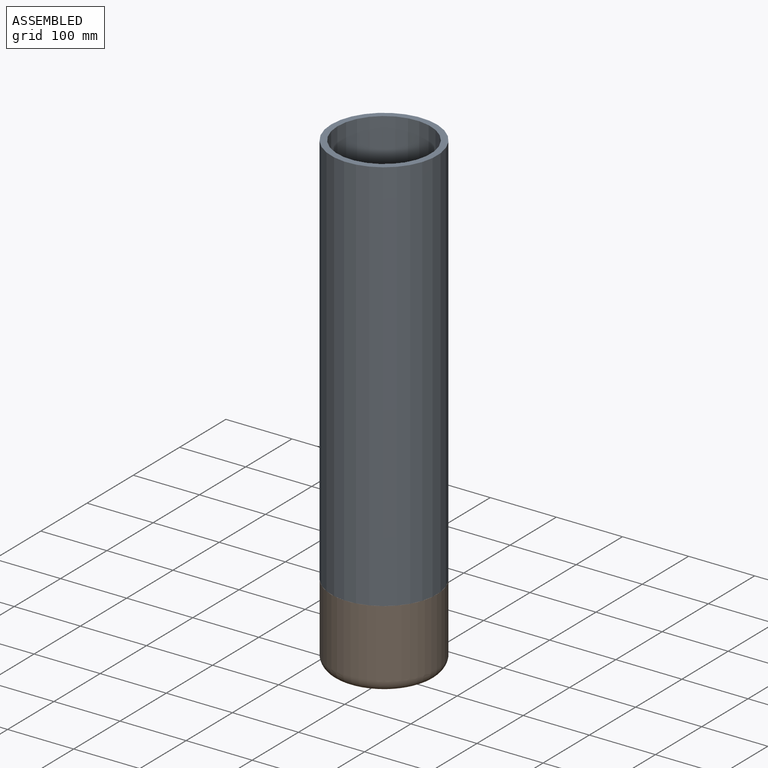
[diagram: assembled view]
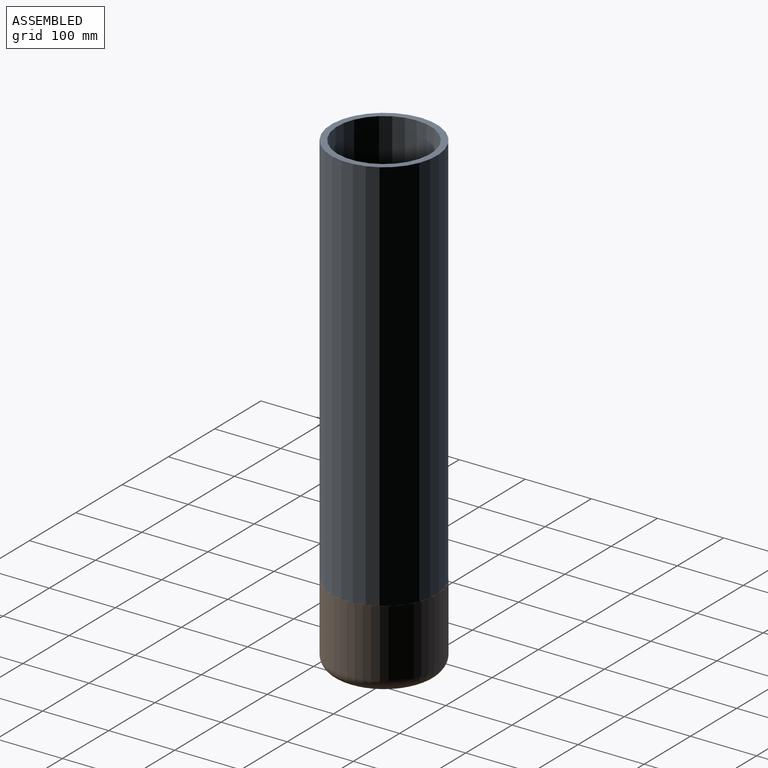
[diagram: assembled view, second angle]
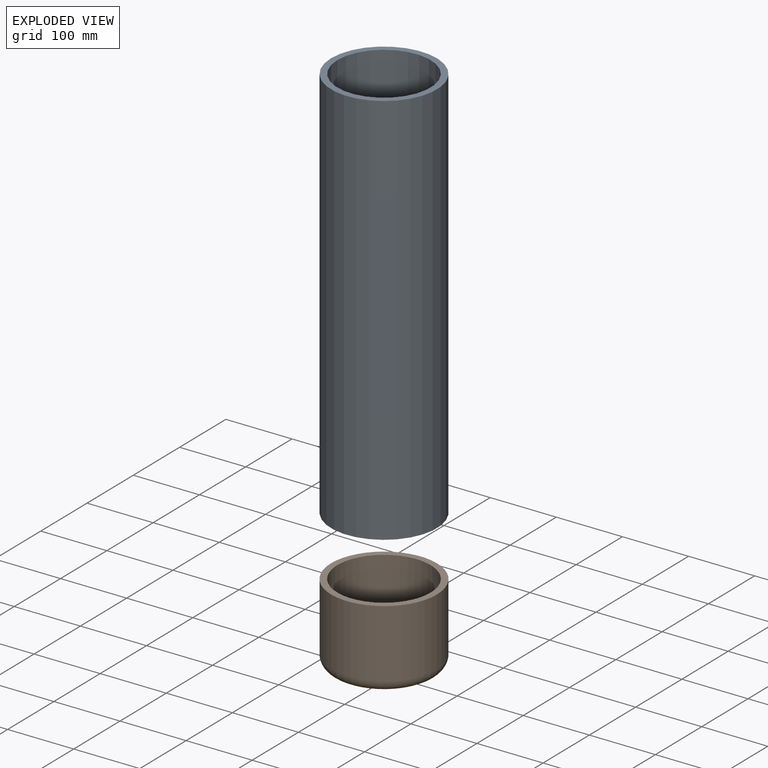
[diagram: exploded view]
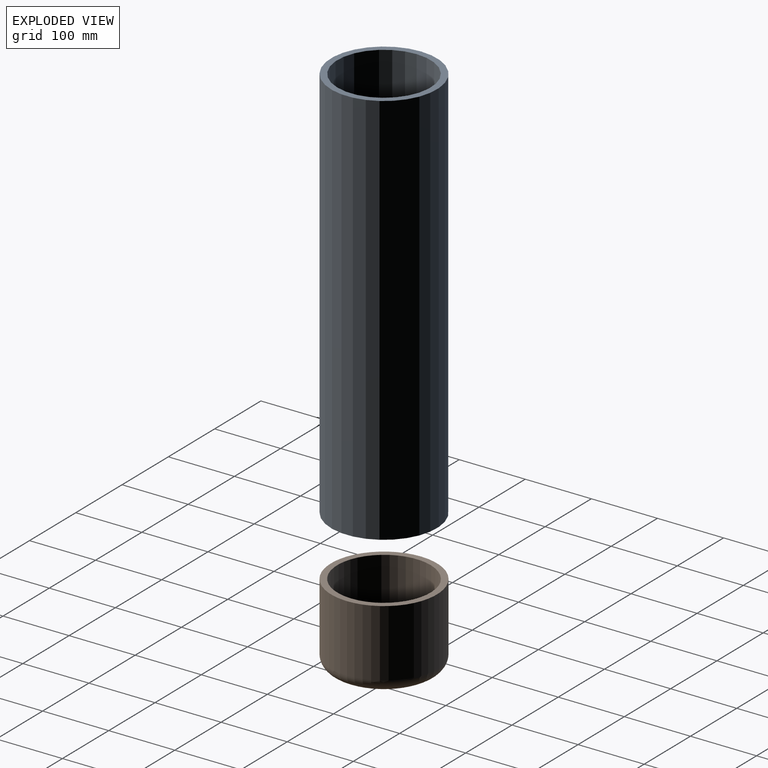
[diagram: exploded view, second angle]
ASSEMBLY  parts=2 mates=2
PART A: 4 faces, bbox 160x160x600 mm
  f0: plane 160x160mm, normal (0,0,-1), area 4491.7mm2, adj f1,f3
  f1: cylinder r=80mm len=600mm, axis (0,0,-1), area 301592.9mm2, adj f0,f2
  f2: plane 160x160mm, normal (0,0,1), area 4491.7mm2, adj f1,f3
  f3: cylinder r=70.5mm len=600mm, axis (0,0,-1), area 265778.7mm2, adj f0,f2
PART B: 57 faces, bbox 173.2x120x173.2 mm
  f0: cylinder r=80mm len=160mm, axis (0,-1,0), area 51270.8mm2, adj f1,f56
  f1: torus R=62mm, axis (0,1,0), area 13050.2mm2, adj f0,f54
  f2: torus R=52.5mm, axis (0,1,0), area 11362.5mm2, adj f3,f55
  f3: cylinder r=70.5mm len=141mm, axis (0,-1,0), area 40974.2mm2, adj f2,f56
  f4: plane 5.36x0.1mm, normal (0,0,1), area 0.5mm2, adj f5,f13,f14,f54
  f5: plane 6.41x0.1mm, normal (-1,0,0), area 0.6mm2, adj f4,f6,f14,f54
  f6: plane 3.22x0.1mm, normal (0,0,1), area 0.3mm2, adj f5,f7,f14,f54
  f7: plane 15.27x0.1mm, normal (1,0,0), area 1.5mm2, adj f6,f8,f14,f54
  f8: plane 8.58x0.1mm, normal (0,0,-1), area 0.9mm2, adj f7,f9,f14,f54
  f9: plane 2.9x0.1mm, normal (-1,0,0), area 0.3mm2, adj f8,f10,f14,f54
  f10: plane 5.36x0.1mm, normal (0,0,1), area 0.5mm2, adj f9,f11,f14,f54
  f11: plane 2.96x0.1mm, normal (-1,0,0), area 0.3mm2, adj f10,f12,f14,f54
  f12: plane 5.36x0.1mm, normal (0,0,-1), area 0.5mm2, adj f11,f13,f14,f54
  f13: plane 2.99x0.1mm, normal (-1,0,0), area 0.3mm2, adj f4,f12,f14,f54
  f14: plane 15.27x8.58mm, normal (0,-1,0), area 80.7mm2, adj f4,f5,f6,f7,f8,f9,f10,f11
  f15: plane 3.45x0.1mm, normal (1,0,0), area 0.3mm2, adj f16,f26,f27,f54
  f16: plane 3.49x0.1mm, normal (0,0,1), area 0.3mm2, adj f15,f17,f27,f54
  f17: plane 2.99x0.1mm, normal (1,0,0), area 0.3mm2, adj f16,f18,f27,f54
  f18: plane 3.49x0.1mm, normal (0,0,-1), area 0.3mm2, adj f17,f19,f27,f54
  f19: plane 3.45x0.1mm, normal (1,0,0), area 0.3mm2, adj f18,f20,f27,f54
  f20: plane 2.89x0.1mm, normal (0,0,-1), area 0.3mm2, adj f19,f21,f27,f54
  f21: plane 3.45x0.1mm, normal (-1,0,0), area 0.3mm2, adj f20,f22,f27,f54
  f22: plane 3.49x0.1mm, normal (0,0,-1), area 0.3mm2, adj f21,f23,f27,f54
  f23: plane 2.99x0.1mm, normal (-1,0,0), area 0.3mm2, adj f22,f24,f27,f54
  f24: plane 3.49x0.1mm, normal (0,0,1), area 0.3mm2, adj f23,f25,f27,f54
  f25: plane 3.45x0.1mm, normal (-1,0,0), area 0.3mm2, adj f24,f26,f27,f54
  f26: plane 2.89x0.1mm, normal (0,0,1), area 0.3mm2, adj f15,f25,f27,f54
  f27: plane 9.89x9.87mm, normal (0,-1,0), area 49.5mm2, adj f15,f16,f17,f18,f19,f20,f21,f22
  f28: cylinder r=4.45mm len=4.67mm, axis (0,1,0), area 0.6mm2, adj f29,f39,f40,f54
  f29: plane 4.67x0.1mm, normal (0,0,1), area 0.5mm2, adj f28,f30,f40,f54
  f30: plane 2.55x0.1mm, normal (1,0,0), area 0.3mm2, adj f29,f31,f40,f54
  f31: plane 7.41x0.1mm, normal (0,0,-1), area 0.7mm2, adj f30,f32,f40,f54
  f32: cylinder r=7.78mm len=8.47mm, axis (0,1,0), area 1.3mm2, adj f31,f33,f40,f54
  f33: cylinder r=8.53mm len=8.47mm, axis (0,1,0), area 1.2mm2, adj f32,f34,f40,f54
  f34: cylinder r=8.16mm len=7.59mm, axis (0,1,0), area 1.2mm2, adj f33,f35,f40,f54
  f35: cylinder r=7.41mm len=6.1mm, axis (0,1,0), area 0.7mm2, adj f34,f36,f40,f54
  f36: plane 2.1x1.45mm, normal (-0.57,0,0.82), area 0.3mm2, adj f35,f37,f40,f54
  f37: cylinder r=3.71mm len=4mm, axis (0,1,0), area 0.5mm2, adj f36,f38,f40,f54
  f38: cylinder r=5.93mm len=5.04mm, axis (0,1,0), area 0.8mm2, adj f37,f39,f40,f54
  f39: cylinder r=5.78mm len=5.92mm, axis (0,1,0), area 0.9mm2, adj f28,f38,f40,f54
  f40: plane 16x15.04mm, normal (0,-1,0), area 103.8mm2, adj f28,f29,f30,f31,f32,f33,f34,f35
  f41: plane 3.45x0.1mm, normal (1,0,0), area 0.3mm2, adj f42,f52,f53,f54
  f42: plane 3.49x0.1mm, normal (0,0,1), area 0.3mm2, adj f41,f43,f53,f54
  f43: plane 2.99x0.1mm, normal (1,0,0), area 0.3mm2, adj f42,f44,f53,f54
  f44: plane 3.49x0.1mm, normal (0,0,-1), area 0.3mm2, adj f43,f45,f53,f54
  f45: plane 3.45x0.1mm, normal (1,0,0), area 0.3mm2, adj f44,f46,f53,f54
  f46: plane 2.89x0.1mm, normal (0,0,-1), area 0.3mm2, adj f45,f47,f53,f54
  f47: plane 3.45x0.1mm, normal (-1,0,0), area 0.3mm2, adj f46,f48,f53,f54
  f48: plane 3.49x0.1mm, normal (0,0,-1), area 0.3mm2, adj f47,f49,f53,f54
  f49: plane 2.99x0.1mm, normal (-1,0,0), area 0.3mm2, adj f48,f50,f53,f54
  f50: plane 3.49x0.1mm, normal (0,0,1), area 0.3mm2, adj f49,f51,f53,f54
  f51: plane 3.45x0.1mm, normal (-1,0,0), area 0.3mm2, adj f50,f52,f53,f54
  f52: plane 2.89x0.1mm, normal (0,0,1), area 0.3mm2, adj f41,f51,f53,f54
  f53: plane 9.89x9.87mm, normal (0,-1,0), area 49.5mm2, adj f41,f42,f43,f44,f45,f46,f47,f48
  f54: plane 124x124mm, normal (0,-1,0), area 11792.7mm2, adj f1,f4,f5,f6,f7,f8,f9,f10
  f55: plane 105x105mm, normal (0,1,0), area 8659mm2, adj f2
  f56: plane 160x160mm, normal (0,1,0), area 4491.7mm2, adj f0,f3
PLACE A t=(-163.18,132.25,78.22)mm
PLACE B rot(axis=(1,0,0),90deg) t=(-163.18,132.25,78.22)mm
MATE planar A.f1 <-> B.f0  axis (0,0,-1) through (-163.18,132.25,78.22)mm
MATE cylindrical B.f0 <-> A.f1  axis (0,0,1) through (-163.18,132.25,78.22)mm
